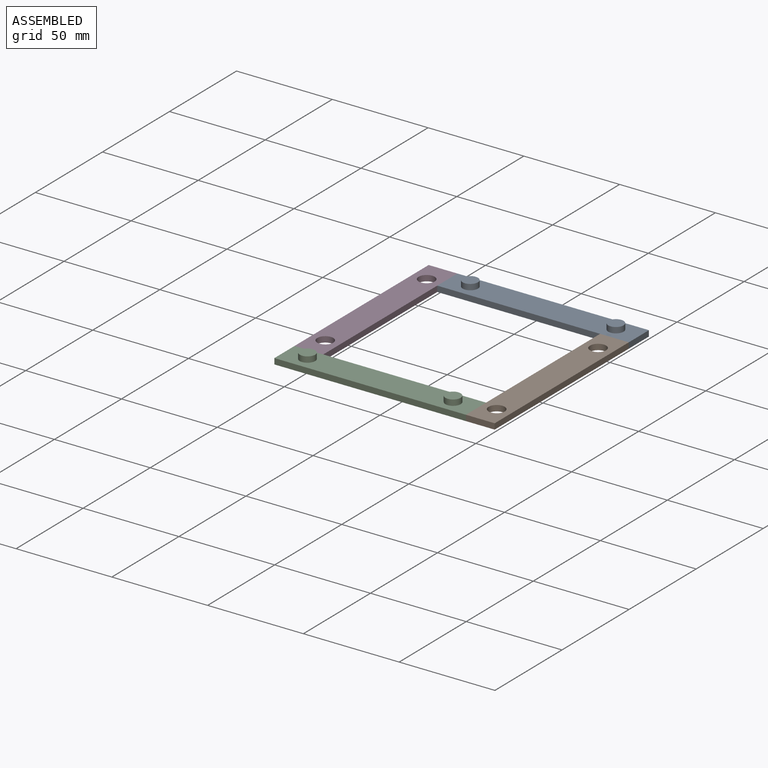
[diagram: assembled view]
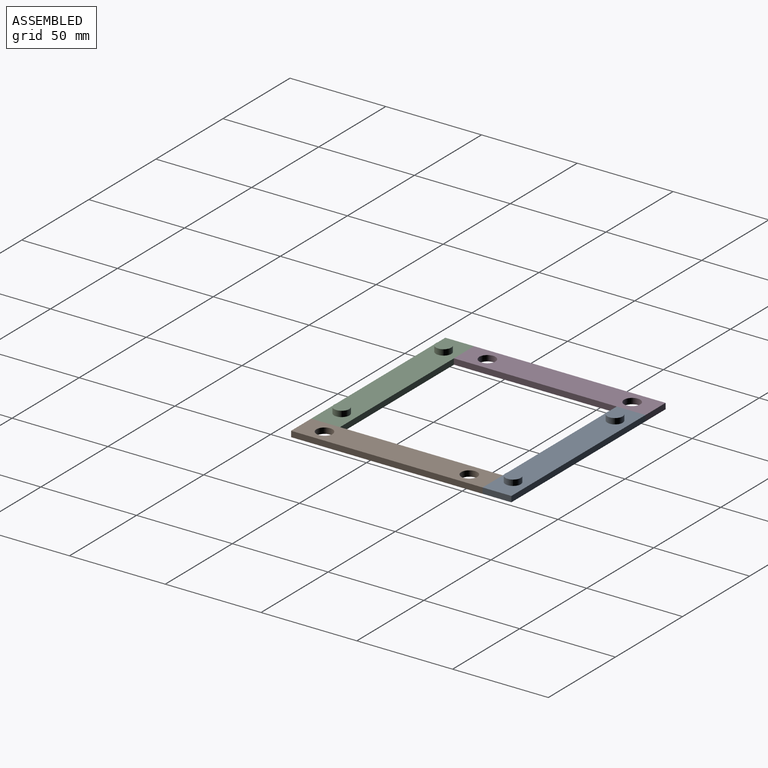
[diagram: assembled view, second angle]
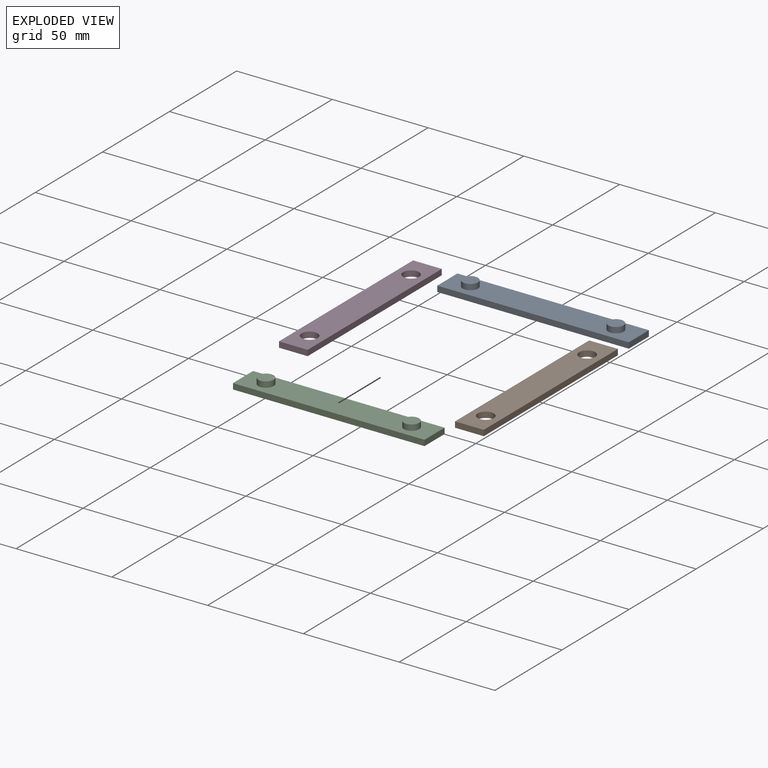
[diagram: exploded view]
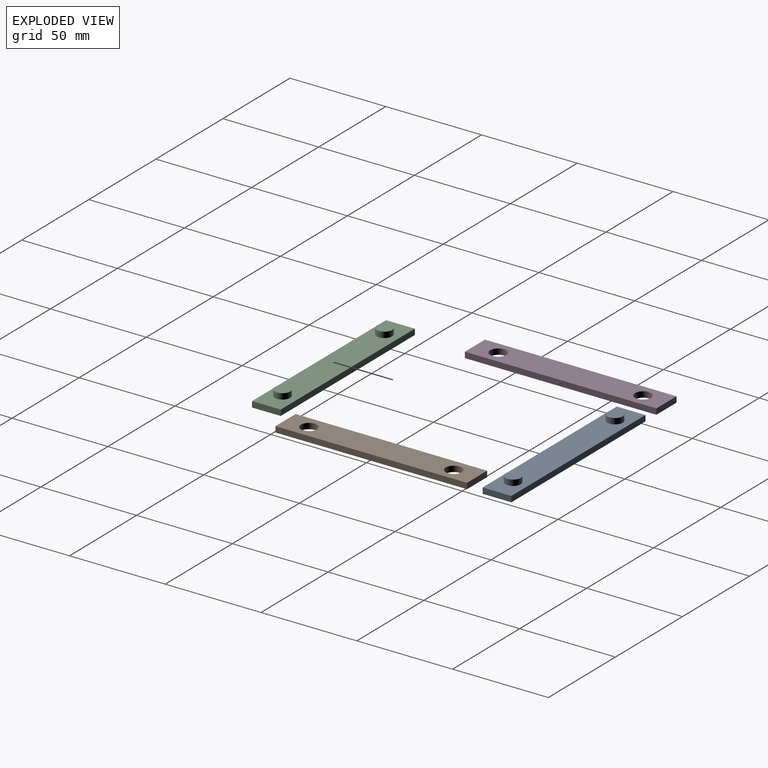
[diagram: exploded view, second angle]
ASSEMBLY  parts=4 mates=3
PART A: 10 faces, bbox 100x15x6 mm
  f0: plane 15x3mm, normal (1,0,0), area 45mm2, adj f1,f3,f4,f5
  f1: plane 100x3mm, normal (0,1,0), area 300mm2, adj f0,f2,f4,f5
  f2: plane 15x3mm, normal (-1,0,0), area 45mm2, adj f1,f3,f4,f5
  f3: plane 100x3mm, normal (0,-1,0), area 300mm2, adj f0,f2,f4,f5
  f4: plane 100x15mm, normal (0,0,1), area 1399.5mm2, adj f0,f1,f2,f3,f6,f8
  f5: plane 100x15mm, normal (0,0,-1), area 1500mm2, adj f0,f1,f2,f3
  f6: cylinder r=4mm len=8mm, axis (0,0,-1), area 75.4mm2, adj f4,f7
  f7: plane 8x8mm, normal (0,0,1), area 50.3mm2, adj f6
  f8: cylinder r=4mm len=8mm, axis (0,0,-1), area 75.4mm2, adj f4,f9
  f9: plane 8x8mm, normal (0,0,1), area 50.3mm2, adj f8
PART B: 8 faces, bbox 100x15x3 mm
  f0: plane 15x3mm, normal (1,0,0), area 45mm2, adj f1,f4,f6,f7
  f1: plane 100x3mm, normal (0,1,0), area 300mm2, adj f0,f2,f6,f7
  f2: plane 15x3mm, normal (-1,0,0), area 45mm2, adj f1,f4,f6,f7
  f3: cylinder r=4.2mm len=8.4mm, axis (0,0,-1), area 79.2mm2, adj f6,f7
  f4: plane 100x3mm, normal (0,-1,0), area 300mm2, adj f0,f2,f6,f7
  f5: cylinder r=4.2mm len=8.4mm, axis (0,0,-1), area 79.2mm2, adj f6,f7
  f6: plane 100x15mm, normal (0,0,1), area 1389.2mm2, adj f0,f1,f2,f3,f4,f5
  f7: plane 100x15mm, normal (0,0,-1), area 1389.2mm2, adj f0,f1,f2,f3,f4,f5
PART C: same geometry as A
PART D: same geometry as B
PLACE A t=(-48.4,-30.72,-19.24)mm fixed
PLACE B rot(axis=(0,0,-1),90deg) t=(-5.9,-88.22,-19.24)mm
PLACE C t=(-63.4,-130.72,-19.24)mm
PLACE D rot(axis=(0,0,-1),90deg) t=(-105.9,-73.22,-19.24)mm
MATE fastened B.f2 <-> A.f3  axis (0,1,0) through (1.6,-38.22,-17.74)mm
MATE fastened C.f1 <-> D.f0  axis (0,1,0) through (-113.4,-123.22,-17.74)mm
MATE fastened D.f1 <-> A.f2  axis (1,0,0) through (-98.4,-23.22,-17.74)mm
